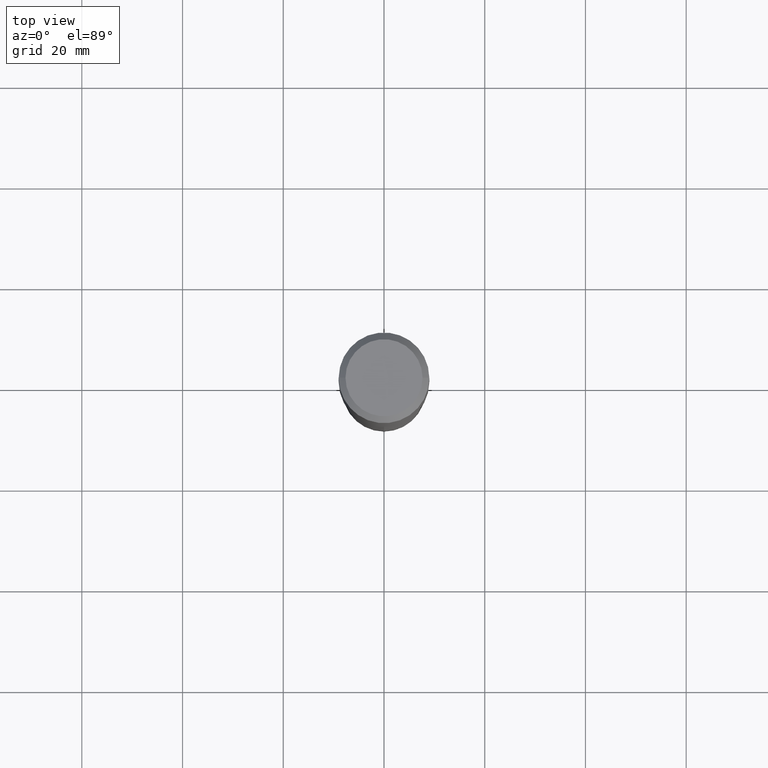
[diagram: clean part render]
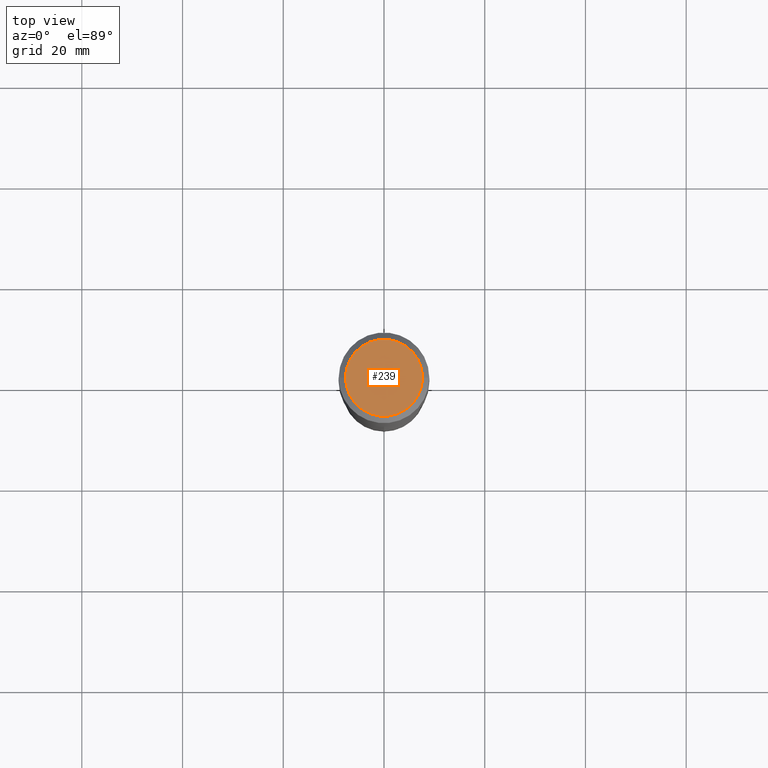
[diagram: same view with one face highlighted and labeled with its STEP entity id]
A machine part, top view. The second image highlights one B-rep face of the part: STEP entity #239.
In plain terms, the highlighted planar face has unit normal (0, -0, -1).
Its self-contained STEP definition (entity closure, byte-faithful):
#30 = CIRCLE ( 'NONE', #172, 0.3011975000000000069 ) ;
#36 = DIRECTION ( 'NONE',  ( 2.438088387897960049E-29, -3.491481338843145188E-15, -1.000000000000000000 ) ) ;
#103 = FACE_OUTER_BOUND ( 'NONE', #171, .T. ) ;
#106 = CIRCLE ( 'NONE', #469, 0.3011975000000000069 ) ;
#108 = PLANE ( 'NONE',  #393 ) ;
#139 = DIRECTION ( 'NONE',  ( -2.445468806185136597E-29, 3.491481338843145583E-15, 1.000000000000000000 ) ) ;
#144 = DIRECTION ( 'NONE',  ( -2.445468806185136597E-29, 3.491481338843145583E-15, 1.000000000000000000 ) ) ;
#171 = EDGE_LOOP ( 'NONE', ( #471, #390 ) ) ;
#172 = AXIS2_PLACEMENT_3D ( 'NONE', #382, #144, #425 ) ;
#227 = EDGE_CURVE ( 'NONE', #448, #306, #106, .T. ) ;
#239 = ADVANCED_FACE ( 'NONE', ( #103 ), #108, .F. ) ;
#248 = CARTESIAN_POINT ( 'NONE',  ( -5.014852121625167883E-47, 7.159879756154481060E-33, 2.050671065172242981E-18 ) ) ;
#263 = EDGE_CURVE ( 'NONE', #306, #448, #30, .T. ) ;
#288 = DIRECTION ( 'NONE',  ( 1.000000000000000000, -6.982962677686266711E-15, 4.876239486148337140E-29 ) ) ;
#295 = CARTESIAN_POINT ( 'NONE',  ( 0.3011975000000000069, -2.341481636528497322E-15, 4.101342130360026675E-18 ) ) ;
#306 = VERTEX_POINT ( 'NONE', #336 ) ;
#336 = CARTESIAN_POINT ( 'NONE',  ( -0.3011975000000000069, 2.196041382043837860E-15, 4.101342130329452923E-18 ) ) ;
#367 = CARTESIAN_POINT ( 'NONE',  ( -1.002970424325033577E-46, 1.431975951230896212E-32, 4.101342130344485961E-18 ) ) ;
#382 = CARTESIAN_POINT ( 'NONE',  ( -1.002970424325033577E-46, 1.431975951230896212E-32, 4.101342130344485961E-18 ) ) ;
#390 = ORIENTED_EDGE ( 'NONE', *, *, #227, .T. ) ;
#393 = AXIS2_PLACEMENT_3D ( 'NONE', #248, #36, #414 ) ;
#414 = DIRECTION ( 'NONE',  ( -1.000000000000000000, 6.982962677686265922E-15, -4.876176775795935793E-29 ) ) ;
#425 = DIRECTION ( 'NONE',  ( 1.000000000000000000, -6.982962677686266711E-15, 4.876239486148337140E-29 ) ) ;
#448 = VERTEX_POINT ( 'NONE', #295 ) ;
#469 = AXIS2_PLACEMENT_3D ( 'NONE', #367, #139, #288 ) ;
#471 = ORIENTED_EDGE ( 'NONE', *, *, #263, .T. ) ;